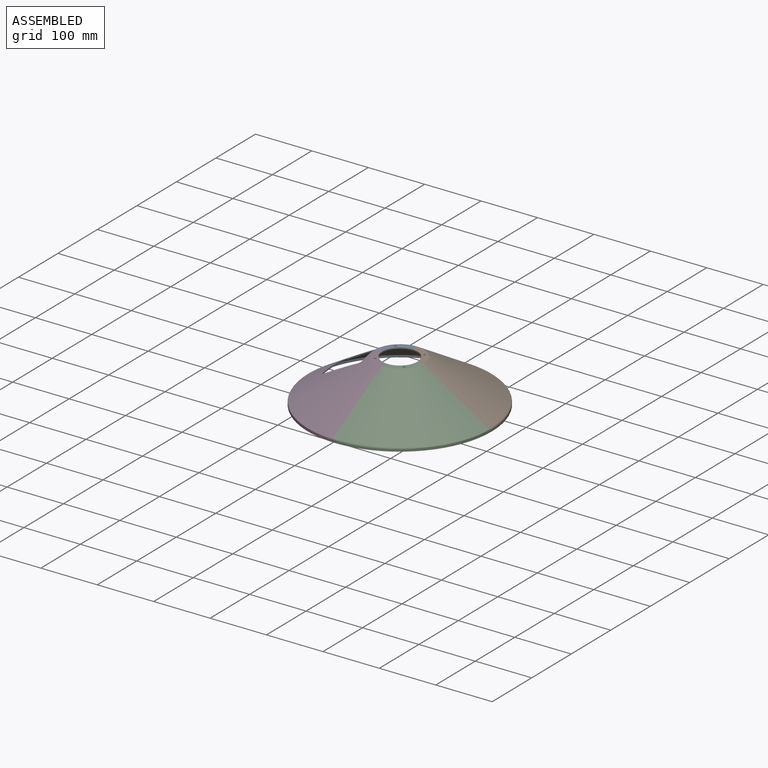
[diagram: assembled view]
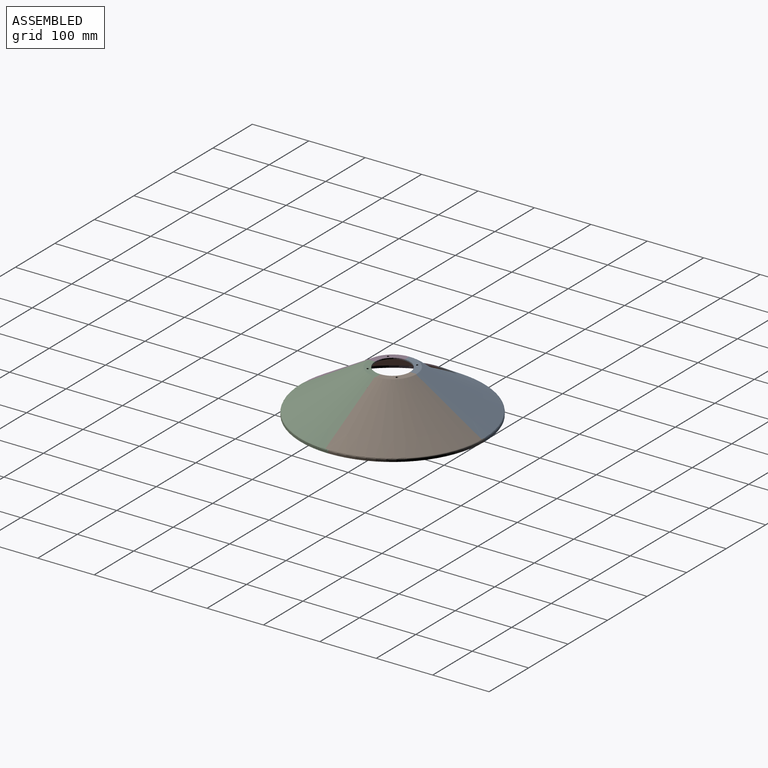
[diagram: assembled view, second angle]
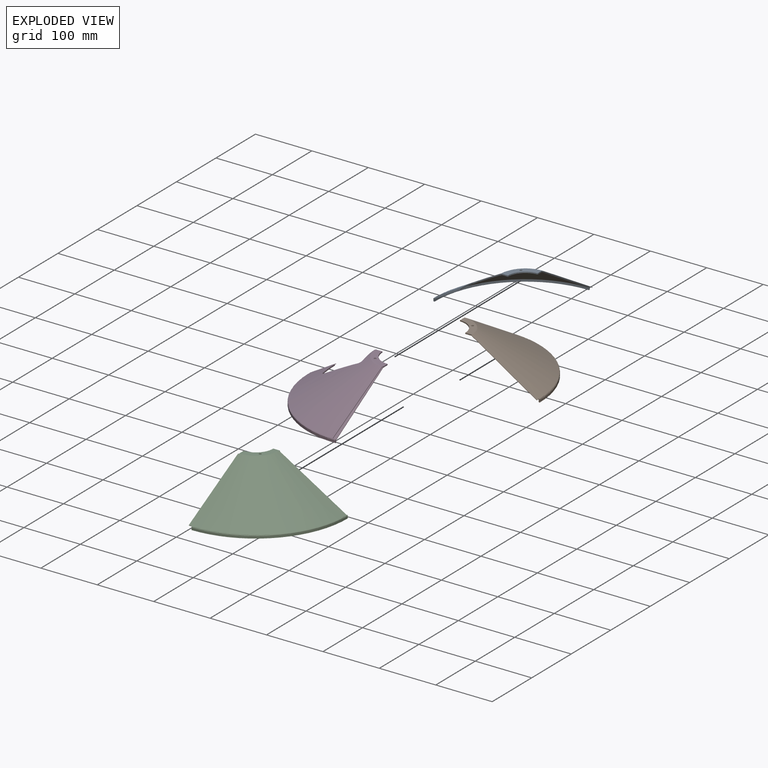
[diagram: exploded view]
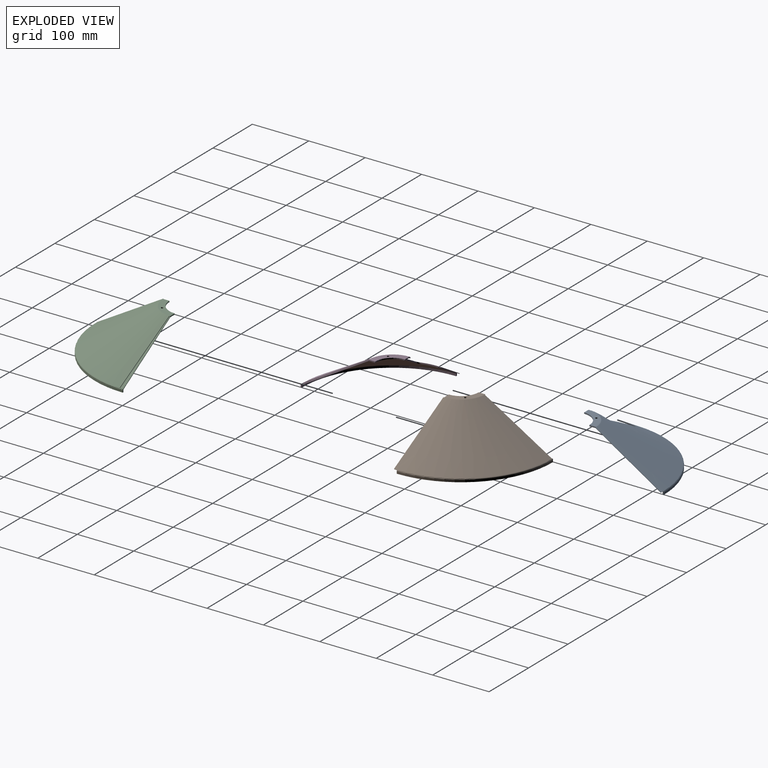
[diagram: exploded view, second angle]
ASSEMBLY  parts=4 mates=3
PART A: 43 faces, bbox 198.7x427.5x249.8 mm
  f0: cone r=42.55mm half-angle=59.4deg, axis (0,0,-1), area 19673.5mm2, adj f1,f9,f10,f11,f12,f14,f15,f16
  f1: plane 48x33.58mm, normal (0,-1,0), area 53.3mm2, adj f0,f2,f6,f7,f8,f9,f11,f39
  f2: cone r=161mm half-angle=59.4deg, axis (0,0,-1), area 19130.6mm2, adj f1,f5,f11,f12,f14,f15,f16,f17
  f3: plane 42x42mm, normal (0,0,1), area 618.1mm2, adj f4,f10,f13,f17,f18
  f4: cylinder r=31mm len=31mm, axis (0,0,1), area 97.4mm2, adj f3,f5,f17,f18
  f5: plane 42x42mm, normal (0,0,-1), area 618.1mm2, adj f2,f4,f13,f17,f18
  f6: cylinder r=161mm len=161mm, axis (0,0,1), area 939.5mm2, adj f1,f7,f18,f42
  f7: plane 163x163mm, normal (0,0,-1), area 508.9mm2, adj f1,f6,f8,f18
  f8: cylinder r=163mm len=163mm, axis (0,0,1), area 1024.2mm2, adj f1,f7,f9,f18
  f9: torus R=161mm, axis (0,0,-1), area 529.4mm2, adj f0,f1,f8,f18,f24,f38,f41
  f10: torus R=42mm, axis (0,0,1), area 71.5mm2, adj f0,f3,f17,f18,f29
  f11: plane 32.28x6.89mm, normal (1,0,0), area 69.7mm2, adj f0,f1,f2,f16
  f12: plane 30.01x7.72mm, normal (-1,0,0), area 69.7mm2, adj f0,f2,f14,f17
  f13: cylinder r=2mm len=4mm, axis (0,0,1), area 25.1mm2, adj f3,f5
  f14: cylinder r=5mm len=6.44mm, axis (0,0,-1), area 18.3mm2, adj f0,f2,f12,f15
  f15: plane 60.01x34.56mm, normal (0,-1,0), area 139.5mm2, adj f0,f2,f14,f16
  f16: cylinder r=5mm len=5mm, axis (0,0,-1), area 18.3mm2, adj f0,f2,f11,f15
  f17: plane 14x3.78mm, normal (0,-1,0), area 28.9mm2, adj f0,f2,f3,f4,f5,f10,f12
  f18: plane 132x76.5mm, normal (1,0,0), area 171.1mm2, adj f2,f3,f4,f5,f6,f7,f8,f9
  f19: cone r=43.02mm half-angle=30.6deg, axis (0,0,1), area 0.7mm2, adj f0,f27,f29,f30
  f20: cone r=42.61mm half-angle=59.4deg, axis (0,0,-1), area 417.7mm2, adj f30,f31,f35,f36
  f21: cone r=161.61mm half-angle=30.6deg, axis (0,0,1), area 3.2mm2, adj f0,f32,f36,f38
  f22: plane 118.89x70.81mm, normal (1,-0.03,0), area 82.8mm2, adj f0,f27,f31,f32
  f23: cone r=115.86mm half-angle=30.6deg, axis (0,0,1), area 3.8mm2, adj f0,f25,f26,f39
  f24: cone r=161.51mm half-angle=30.6deg, axis (0,0,1), area 5.4mm2, adj f9,f25,f26,f40,f41
  f25: cone r=115.35mm half-angle=59.4deg, axis (0,0,-1), area 248.3mm2, adj f23,f24,f26,f39,f40
  f26: plane 46.64x28.21mm, normal (-0.03,-1,0), area 53.7mm2, adj f0,f23,f24,f25
  f27: bspline ~53.14x31.58mm, area 0.2mm2, adj f0,f19,f22,f28
  f28: sphere r=0.2mm, area 0mm2, adj f27,f30,f31
  f29: bspline ~52.72x31.34mm, area 0.2mm2, adj f10,f18,f19,f33
  f30: torus R=42.89mm, axis (0,0,-1), area 0.3mm2, adj f19,f20,f28,f33
  f31: bspline ~367.57x218.01mm, area 43.3mm2, adj f20,f22,f28,f34
  f32: bspline ~161.03x95.46mm, area 0.2mm2, adj f0,f21,f22,f34
  f33: bspline ~0.64x0.34mm, area 0.1mm2, adj f18,f29,f30,f35
  f34: sphere r=0.2mm, area 0.1mm2, adj f31,f32,f36
  f35: bspline ~390.26x231.31mm, area 43.4mm2, adj f18,f20,f33,f37
  f36: torus R=161.54mm, axis (0,0,-1), area 1.6mm2, adj f20,f21,f34,f37
  f37: bspline ~0.64x0.34mm, area 0.1mm2, adj f18,f35,f36,f38
  f38: bspline ~113x67.06mm, area 0.2mm2, adj f9,f18,f21,f37
  f39: bspline ~68.8x40.87mm, area 0.3mm2, adj f0,f1,f23,f25,f40
  f40: bspline ~68.97x40.97mm, area 16.9mm2, adj f1,f24,f25,f39,f41
  f41: bspline ~68.98x40.98mm, area 0.3mm2, adj f1,f9,f24,f40
  f42: torus R=160.5mm, axis (0,0,1), area 130.9mm2, adj f1,f2,f6,f18
PART B: 33 faces, bbox 439.1x425.2x247.6 mm
  f0: plane 132x76.5mm, normal (0,1,0), area 143.3mm2, adj f1,f3,f4,f5,f6,f7,f8,f9
  f1: cone r=161mm half-angle=59.4deg, axis (0,0,-1), area 21980.5mm2, adj f0,f5,f12,f32
  f2: cone r=42.55mm half-angle=59.4deg, axis (0,0,-1), area 22274mm2, adj f9,f10,f13,f15,f16,f20
  f3: plane 42x42mm, normal (0,0,1), area 618.1mm2, adj f0,f4,f10,f11,f12
  f4: cylinder r=31mm len=31mm, axis (0,0,1), area 97.4mm2, adj f0,f3,f5,f12
  f5: plane 42x42mm, normal (0,0,-1), area 618.1mm2, adj f0,f1,f4,f11,f12
  f6: cylinder r=161mm len=161mm, axis (0,0,1), area 939.5mm2, adj f0,f7,f12,f32
  f7: plane 163x163mm, normal (0,0,-1), area 508.9mm2, adj f0,f6,f8,f12
  f8: cylinder r=163mm len=163mm, axis (0,0,1), area 1024.2mm2, adj f0,f7,f9,f12
  f9: torus R=161mm, axis (0,0,-1), area 529.4mm2, adj f0,f2,f8,f12,f19,f25,f30
  f10: torus R=42mm, axis (0,0,1), area 71.4mm2, adj f0,f2,f3,f12,f17,f22,f29
  f11: cylinder r=2mm len=4mm, axis (0,0,1), area 25.1mm2, adj f3,f5
  f12: plane 132x76.5mm, normal (-1,0,0), area 171.1mm2, adj f1,f3,f4,f5,f6,f7,f8,f9
  f13: cone r=43.02mm half-angle=30.6deg, axis (0,0,1), area 0.8mm2, adj f2,f16,f22,f23
  f14: cone r=42.61mm half-angle=59.4deg, axis (0,0,-1), area 417.7mm2, adj f21,f23,f24,f28
  f15: cone r=161.61mm half-angle=30.6deg, axis (0,0,1), area 3.3mm2, adj f2,f16,f24,f25
  f16: plane 119.23x71.02mm, normal (-1,0.03,0), area 83mm2, adj f2,f13,f15,f21,f23
  f17: cone r=43.02mm half-angle=30.6deg, axis (0,0,1), area 1.3mm2, adj f10,f18,f20,f29
  f18: cone r=42.51mm half-angle=59.4deg, axis (0,0,-1), area 464.8mm2, adj f17,f19,f20,f29,f31
  f19: cone r=161.51mm half-angle=30.6deg, axis (0,0,1), area 5.4mm2, adj f9,f18,f20,f30,f31
  f20: plane 119.44x71.36mm, normal (0.03,1,0), area 138.3mm2, adj f2,f17,f18,f19
  f21: bspline ~367.57x218.01mm, area 43.4mm2, adj f14,f16,f23,f24
  f22: bspline ~52.72x31.34mm, area 0.2mm2, adj f10,f12,f13,f26
  f23: torus R=42.89mm, axis (0,0,-1), area 0.4mm2, adj f13,f14,f16,f21,f26
  f24: torus R=161.54mm, axis (0,0,-1), area 1.7mm2, adj f14,f15,f21,f27
  f25: bspline ~113x67.06mm, area 0.2mm2, adj f9,f12,f15,f27
  f26: bspline ~0.64x0.34mm, area 0.1mm2, adj f12,f22,f23,f28
  f27: bspline ~0.64x0.34mm, area 0.1mm2, adj f12,f24,f25,f28
  f28: bspline ~390.26x231.31mm, area 43.4mm2, adj f12,f14,f26,f27
  f29: bspline ~52.66x31.31mm, area 0.3mm2, adj f0,f10,f17,f18,f31
  f30: bspline ~113.04x67.08mm, area 0.3mm2, adj f0,f9,f19,f31
  f31: bspline ~390.13x231.24mm, area 43.5mm2, adj f0,f18,f19,f29,f30
  f32: torus R=160.5mm, axis (0,0,1), area 130.9mm2, adj f0,f1,f6,f12
PART C: same geometry as B
PART D: 39 faces, bbox 184.7x433.2x249.7 mm
  f0: cone r=42.55mm half-angle=59.4deg, axis (0,0,-1), area 19204mm2, adj f9,f10,f11,f12,f14,f15,f16,f17
  f1: plane 132x76.5mm, normal (1,0,0), area 143.3mm2, adj f2,f3,f4,f5,f6,f7,f8,f9
  f2: cone r=161mm half-angle=59.4deg, axis (0,0,-1), area 19130.6mm2, adj f1,f5,f11,f12,f14,f15,f16,f17
  f3: plane 42x42mm, normal (0,0,1), area 618.1mm2, adj f1,f4,f10,f13,f17
  f4: cylinder r=31mm len=31mm, axis (0,0,1), area 97.4mm2, adj f1,f3,f5,f17
  f5: plane 42x42mm, normal (0,0,-1), area 618.1mm2, adj f1,f2,f4,f13,f17
  f6: cylinder r=161mm len=161mm, axis (0,0,1), area 939.5mm2, adj f1,f7,f18,f38
  f7: plane 163x163mm, normal (0,0,-1), area 508.9mm2, adj f1,f6,f8,f18
  f8: cylinder r=163mm len=163mm, axis (0,0,1), area 1024.2mm2, adj f1,f7,f9,f18
  f9: torus R=161mm, axis (0,0,-1), area 529.4mm2, adj f0,f1,f8,f18,f20,f28,f34
  f10: torus R=42mm, axis (0,0,1), area 71.4mm2, adj f0,f1,f3,f17,f19,f29
  f11: plane 32.29x6.9mm, normal (1,0,0), area 69.7mm2, adj f0,f2,f14,f18
  f12: plane 30.01x7.72mm, normal (-1,0,0), area 69.7mm2, adj f0,f2,f16,f17
  f13: cylinder r=2mm len=4mm, axis (0,0,1), area 25.1mm2, adj f3,f5
  f14: cylinder r=5mm len=5mm, axis (0,0,-1), area 18.3mm2, adj f0,f2,f11,f15
  f15: plane 60.01x34.56mm, normal (0,1,0), area 139.5mm2, adj f0,f2,f14,f16
  f16: cylinder r=5mm len=6.44mm, axis (0,0,-1), area 18.3mm2, adj f0,f2,f12,f15
  f17: plane 14x3.78mm, normal (0,1,0), area 28.9mm2, adj f0,f2,f3,f4,f5,f10,f12
  f18: plane 48x33.58mm, normal (0,1,0), area 64.2mm2, adj f0,f2,f6,f7,f8,f9,f11,f31
  f19: cone r=43.02mm half-angle=30.6deg, axis (0,0,1), area 1.3mm2, adj f10,f21,f22,f29
  f20: cone r=161.51mm half-angle=30.6deg, axis (0,0,1), area 5.4mm2, adj f9,f21,f22,f23,f28
  f21: cone r=42.51mm half-angle=59.4deg, axis (0,0,-1), area 464.8mm2, adj f19,f20,f22,f23,f29
  f22: plane 119.44x71.36mm, normal (1,-0.03,0), area 138.3mm2, adj f0,f19,f20,f21
  f23: bspline ~390.13x231.24mm, area 43.5mm2, adj f1,f20,f21,f28,f29
  f24: cone r=115.86mm half-angle=30.6deg, axis (0,0,1), area 2.3mm2, adj f0,f27,f31,f32
  f25: cone r=115.45mm half-angle=59.4deg, axis (0,0,-1), area 235.8mm2, adj f30,f32,f33,f37
  f26: cone r=161.61mm half-angle=30.6deg, axis (0,0,1), area 3.3mm2, adj f0,f27,f33,f34
  f27: plane 46.44x27.86mm, normal (0.03,1,0), area 32.2mm2, adj f0,f24,f26,f30
  f28: bspline ~113.08x67.11mm, area 0.3mm2, adj f1,f9,f20,f23
  f29: bspline ~52.59x31.27mm, area 0.3mm2, adj f1,f10,f19,f21,f23
  f30: bspline ~64.08x38.1mm, area 16.8mm2, adj f25,f27,f32,f33
  f31: bspline ~68.8x40.87mm, area 0.2mm2, adj f0,f18,f24,f35
  f32: torus R=115.73mm, axis (0,0,-1), area 1.2mm2, adj f24,f25,f30,f35
  f33: torus R=161.54mm, axis (0,0,-1), area 1.7mm2, adj f25,f26,f30,f36
  f34: bspline ~68.98x40.98mm, area 0.2mm2, adj f9,f18,f26,f36
  f35: bspline ~0.64x0.34mm, area 0.1mm2, adj f18,f31,f32,f37
  f36: bspline ~0.64x0.34mm, area 0.1mm2, adj f18,f33,f34,f37
  f37: bspline ~68.97x40.98mm, area 16.7mm2, adj f18,f25,f35,f36
  f38: torus R=160.5mm, axis (0,0,1), area 130.9mm2, adj f1,f2,f6,f18
PLACE A t=(-87.25,47.71,-57.37)mm
PLACE B rot(axis=(0,0,1),90deg) t=(-87.25,47.71,-57.37)mm
PLACE C t=(-87.25,47.71,-57.37)mm
PLACE D t=(-87.25,47.71,-57.37)mm
MATE fastened B.f12 <-> C.f0  axis (0,-1,0) through (-56.25,47.71,17.63)mm
MATE fastened D.f1 <-> C.f12  axis (1,0,0) through (-87.25,16.71,17.63)mm
MATE fastened A.f17 <-> D.f17  axis (0,-1,0) through (-118.25,47.71,17.63)mm
